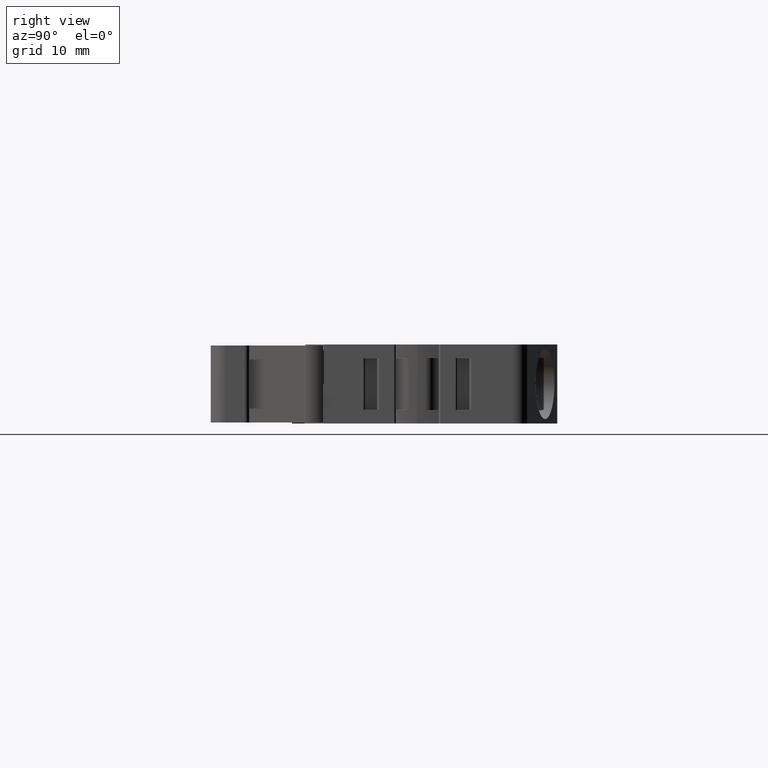
[diagram: clean part render]
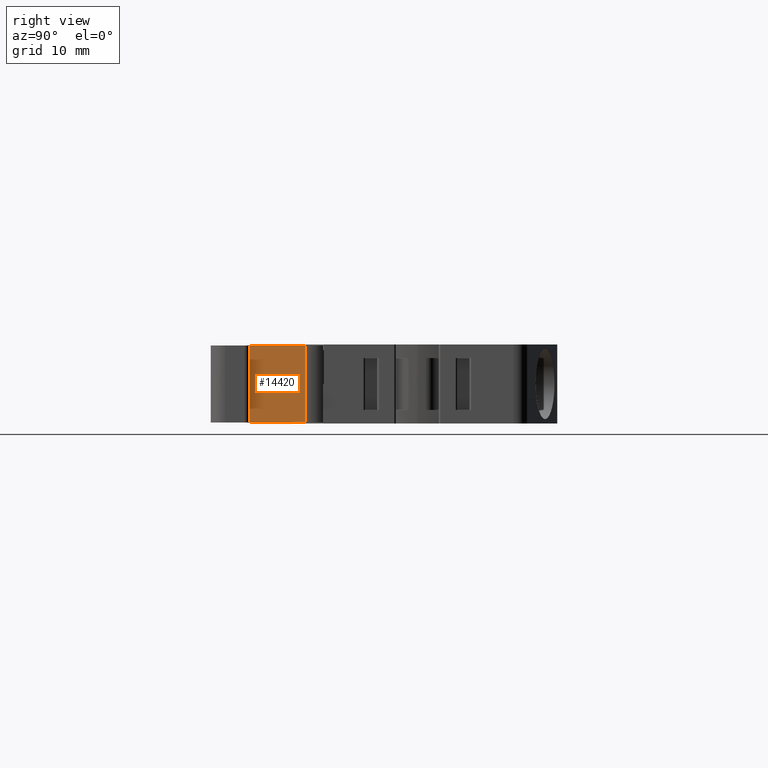
[diagram: same view with one face highlighted and labeled with its STEP entity id]
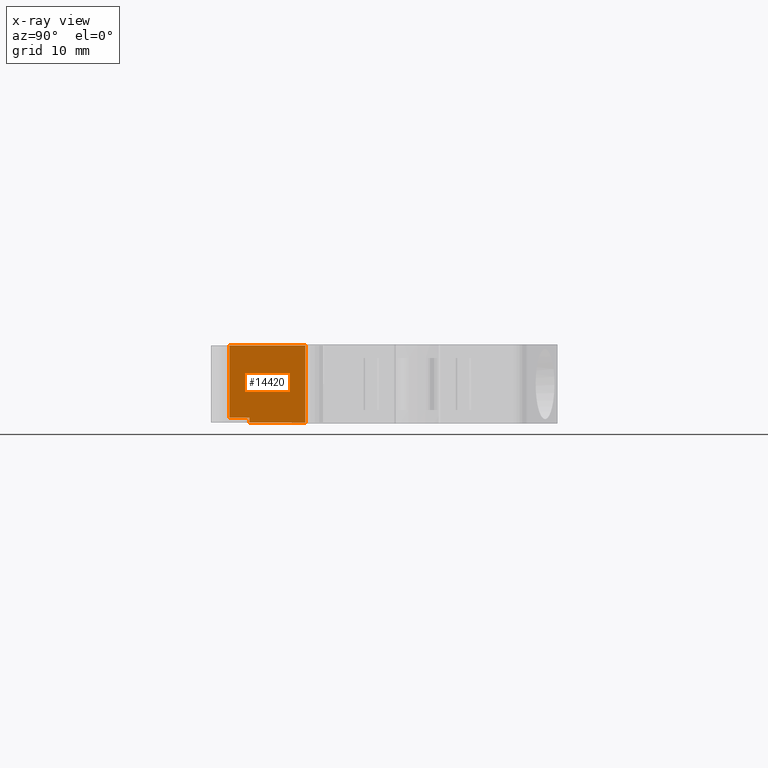
[diagram: x-ray of the same camera — body ghosted, the highlighted face saturated]
A machine part, right view. The second image highlights one B-rep face of the part: STEP entity #14420.
The next image is the same camera in x-ray: the body ghosted, the highlighted face saturated — about 0% of this face is hidden behind the body in this view.
In plain terms, the highlighted planar face has unit normal (0.9659, -0.2588, 0).
Its self-contained STEP definition (entity closure, byte-faithful):
#2097 = CARTESIAN_POINT ( 'NONE',  ( 208.8807560636419400, -2.494462878457226500, -12.60000000000000000 ) ) ;
#2102 = DIRECTION ( 'NONE',  ( 0.0000000000000000000, -0.0000000000000000000, -1.000000000000000000 ) ) ;
#2138 = LINE ( 'NONE', #2097, #7553 ) ;
#3034 = EDGE_CURVE ( 'NONE', #10130, #12164, #2138, .T. ) ;
#3356 = EDGE_CURVE ( 'NONE', #12164, #11564, #5844, .T. ) ;
#3530 = EDGE_CURVE ( 'NONE', #12073, #10130, #6347, .T. ) ;
#3625 = EDGE_CURVE ( 'NONE', #13549, #13615, #9188, .T. ) ;
#3635 = EDGE_CURVE ( 'NONE', #13549, #11564, #9255, .T. ) ;
#3652 = EDGE_CURVE ( 'NONE', #12073, #13615, #9289, .T. ) ;
#3893 = PLANE ( 'NONE',  #10604 ) ;
#3903 = CARTESIAN_POINT ( 'NONE',  ( 194.6509508957400700, -55.60496740619711200, -12.60000000000000000 ) ) ;
#3912 = DIRECTION ( 'NONE',  ( 0.2588001819384749300, 0.9659308804612327700, 0.0000000000000000000 ) ) ;
#3920 = DIRECTION ( 'NONE',  ( 0.9659308804612327700, -0.2588001819384749300, 0.0000000000000000000 ) ) ;
#3926 = FACE_OUTER_BOUND ( 'NONE', #16880, .T. ) ;
#5838 = CARTESIAN_POINT ( 'NONE',  ( 194.6509508957400700, -55.60496740619711200, -20.10000000000000900 ) ) ;
#5840 = DIRECTION ( 'NONE',  ( 0.2588001819384749300, 0.9659308804612327700, 0.0000000000000000000 ) ) ;
#5844 = LINE ( 'NONE', #5838, #6825 ) ;
#5860 = CARTESIAN_POINT ( 'NONE',  ( 210.9989552812652100, 5.411381777237416200, -20.60000000000000100 ) ) ;
#6347 = B_SPLINE_CURVE_WITH_KNOTS ( 'NONE', 3,
 ( #15570, #15571, #15584, #15610 ),
 .UNSPECIFIED., .F., .F.,
 ( 4, 4 ),
 ( 0.0000000000000000000, 1.000000000000000000 ),
 .UNSPECIFIED. ) ;
#6825 = VECTOR ( 'NONE', #5840, 1000.000000000000000 ) ;
#6916 = VECTOR ( 'NONE', #9246, 1000.000000000000000 ) ;
#6935 = VECTOR ( 'NONE', #9174, 1000.000000000000100 ) ;
#6998 = VECTOR ( 'NONE', #9316, 1000.000000000000000 ) ;
#7553 = VECTOR ( 'NONE', #2102, 1000.000000000000000 ) ;
#7681 = CARTESIAN_POINT ( 'NONE',  ( 209.4355257161023800, -0.4238723179397026500, -20.60000000000000100 ) ) ;
#9169 = CARTESIAN_POINT ( 'NONE',  ( 209.4355257161035700, -0.4238726074546062000, -20.60000000000000100 ) ) ;
#9174 = DIRECTION ( 'NONE',  ( 0.2588001819384776500, 0.9659308804612319900, 0.0000000000000000000 ) ) ;
#9188 = LINE ( 'NONE', #9169, #6935 ) ;
#9246 = DIRECTION ( 'NONE',  ( 0.0000000000000000000, 0.0000000000000000000, 1.000000000000000000 ) ) ;
#9255 = LINE ( 'NONE', #9258, #6916 ) ;
#9258 = CARTESIAN_POINT ( 'NONE',  ( 209.4355257161000700, -0.4238717389098957700, -12.60000000000000000 ) ) ;
#9289 = LINE ( 'NONE', #9296, #6998 ) ;
#9296 = CARTESIAN_POINT ( 'NONE',  ( 210.9989552812653500, 5.411381777237390400, -12.60000000000000000 ) ) ;
#9316 = DIRECTION ( 'NONE',  ( 0.0000000000000000000, 0.0000000000000000000, -1.000000000000000000 ) ) ;
#9428 = CARTESIAN_POINT ( 'NONE',  ( 208.8807560636419400, -2.494462878457227400, -12.60000000000000000 ) ) ;
#10130 = VERTEX_POINT ( 'NONE', #9428 ) ;
#10604 = AXIS2_PLACEMENT_3D ( 'NONE', #3903, #3920, #3912 ) ;
#11564 = VERTEX_POINT ( 'NONE', #17549 ) ;
#12073 = VERTEX_POINT ( 'NONE', #17632 ) ;
#12164 = VERTEX_POINT ( 'NONE', #17693 ) ;
#13437 = ORIENTED_EDGE ( 'NONE', *, *, #3034, .T. ) ;
#13442 = ORIENTED_EDGE ( 'NONE', *, *, #3625, .T. ) ;
#13503 = ORIENTED_EDGE ( 'NONE', *, *, #3530, .T. ) ;
#13519 = ORIENTED_EDGE ( 'NONE', *, *, #3652, .F. ) ;
#13533 = ORIENTED_EDGE ( 'NONE', *, *, #3635, .F. ) ;
#13548 = ORIENTED_EDGE ( 'NONE', *, *, #3356, .T. ) ;
#13549 = VERTEX_POINT ( 'NONE', #7681 ) ;
#13615 = VERTEX_POINT ( 'NONE', #5860 ) ;
#14420 = ADVANCED_FACE ( 'NONE', ( #3926 ), #3893, .T. ) ;
#15570 = CARTESIAN_POINT ( 'NONE',  ( 210.9989552812652100, 5.411381777237422400, -12.60000000000000000 ) ) ;
#15571 = CARTESIAN_POINT ( 'NONE',  ( 210.2928888753907300, 2.776100225339224200, -12.60000000000000000 ) ) ;
#15584 = CARTESIAN_POINT ( 'NONE',  ( 209.5868224695163600, 0.1408186734409969900, -12.60000000000000000 ) ) ;
#15610 = CARTESIAN_POINT ( 'NONE',  ( 208.8807560636419400, -2.494462878457227400, -12.60000000000000000 ) ) ;
#16880 = EDGE_LOOP ( 'NONE', ( #13519, #13503, #13437, #13548, #13533, #13442 ) ) ;
#17549 = CARTESIAN_POINT ( 'NONE',  ( 209.4355257402258400, -0.4238719383836002100, -20.10000000000000900 ) ) ;
#17632 = CARTESIAN_POINT ( 'NONE',  ( 210.9989552812652100, 5.411381777237422400, -12.60000000000000000 ) ) ;
#17693 = CARTESIAN_POINT ( 'NONE',  ( 208.8807560636419400, -2.494462878457224300, -20.10000000000000900 ) ) ;